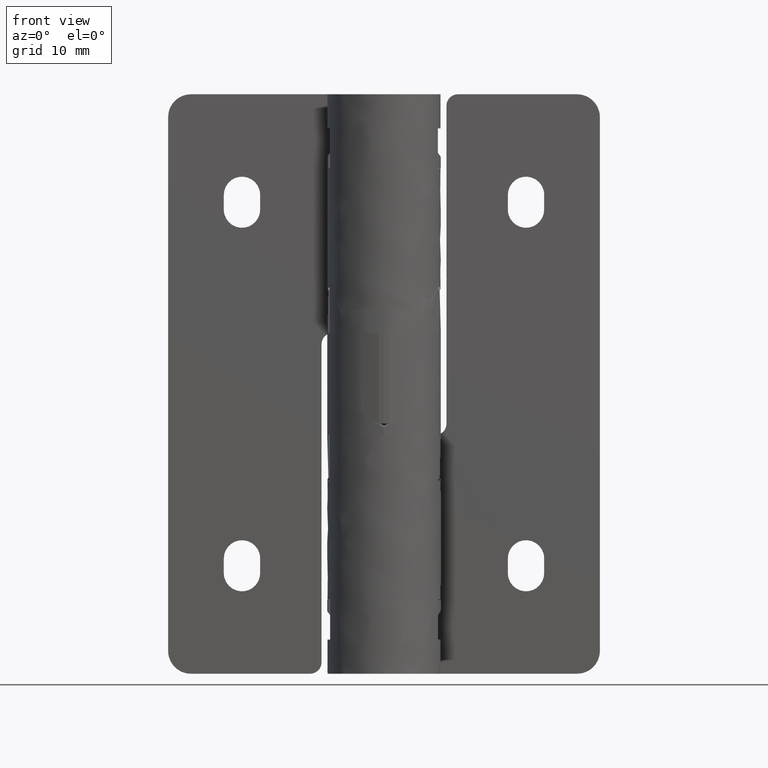
[diagram: clean part render]
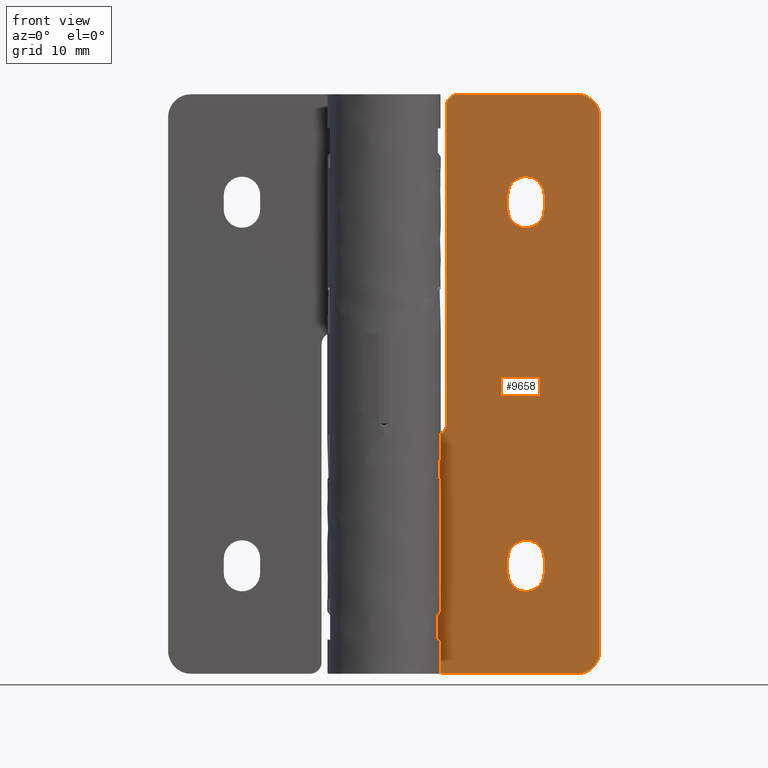
[diagram: same view with one face highlighted and labeled with its STEP entity id]
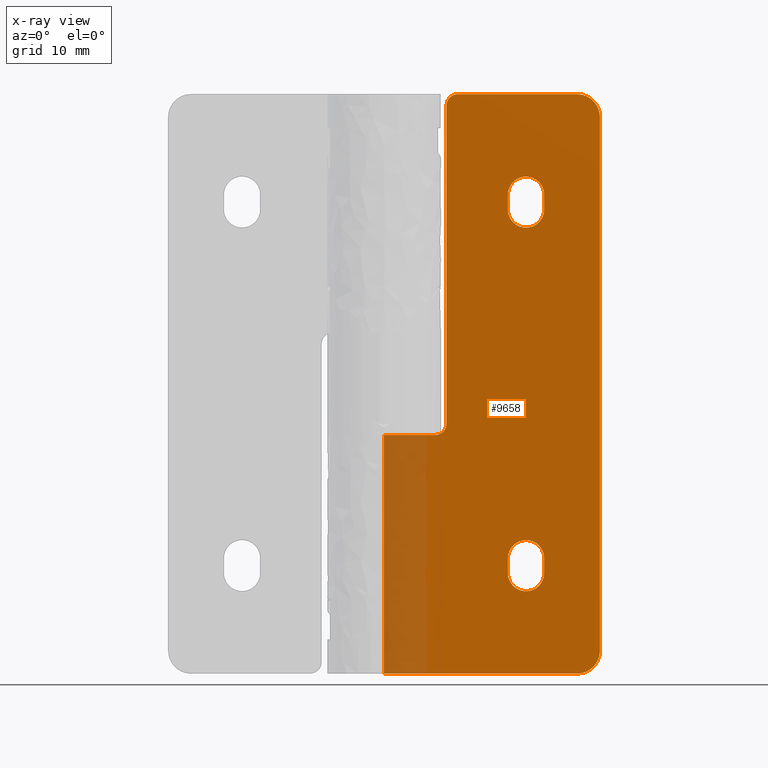
[diagram: x-ray of the same camera — body ghosted, the highlighted face saturated]
A machine part, front view. The second image highlights one B-rep face of the part: STEP entity #9658.
The next image is the same camera in x-ray: the body ghosted, the highlighted face saturated — about 10% of this face is hidden behind the body in this view.
In plain terms, the highlighted face is a freeform B-spline surface patch.
Its self-contained STEP definition (entity closure, byte-faithful):
#6243=CARTESIAN_POINT('',(0.000000013044994,3.500000000000000,0.500000000000056));
#6244=VERTEX_POINT('',#6243);
#6468=CARTESIAN_POINT('',(0.000000015343861,3.500000000000000,7.054697E-017));
#6469=VERTEX_POINT('',#6468);
#6506=CARTESIAN_POINT('',(0.000000013044994,3.500000000000000,0.500000000000056));
#6507=CARTESIAN_POINT('',(0.000000015343861,3.500000000000000,7.054697E-017));
#6508=QUASI_UNIFORM_CURVE('',1,(#6506,#6507),.UNSPECIFIED.,.F.,.U.);
#6509=EDGE_CURVE('',#6244,#6469,#6508,.T.);
#7769=CARTESIAN_POINT('',(3.570534124598411,3.500002604738415,21.000001016416348));
#7770=VERTEX_POINT('',#7769);
#7909=CARTESIAN_POINT('',(-0.000000081208532,3.499999992355165,21.000000999999951));
#7910=VERTEX_POINT('',#7909);
#7924=CARTESIAN_POINT('',(3.570534124598411,3.500002604738415,21.000001016416348));
#7925=CARTESIAN_POINT('',(-0.000000081208532,3.499999992355165,21.000000999999951));
#7926=QUASI_UNIFORM_CURVE('',1,(#7924,#7925),.UNSPECIFIED.,.F.,.U.);
#7927=EDGE_CURVE('',#7770,#7910,#7926,.T.);
#7952=CARTESIAN_POINT('',(5.499999785457250,3.500000000000000,50.000000025287598));
#7953=VERTEX_POINT('',#7952);
#7954=CARTESIAN_POINT('',(6.499999780859510,3.500000000000000,51.000000029885300));
#7955=VERTEX_POINT('',#7954);
#7956=CARTESIAN_POINT('',(5.499999785457250,3.500000000000000,50.000000025287576));
#7957=CARTESIAN_POINT('',(5.499999780859517,3.499999999999999,51.000000025287591));
#7958=CARTESIAN_POINT('',(6.499999780859517,3.500000000000000,51.000000029885307));
#7966=(BOUNDED_CURVE()B_SPLINE_CURVE(2,(#7956,#7957,#7958),.UNSPECIFIED.,.F.,.U.)CURVE()GEOMETRIC_REPRESENTATION_ITEM()QUASI_UNIFORM_CURVE()RATIONAL_B_SPLINE_CURVE((1.0,0.707106781186548,1.0))REPRESENTATION_ITEM(''));
#7967=EDGE_CURVE('',#7953,#7955,#7966,.T.);
#8012=CARTESIAN_POINT('',(4.499999918791495,3.500000000000000,21.000001020689801));
#8013=VERTEX_POINT('',#8012);
#8014=CARTESIAN_POINT('',(5.499999914193760,3.500000000000000,22.000001025287499));
#8015=VERTEX_POINT('',#8014);
#8016=CARTESIAN_POINT('',(4.499999918791495,3.500000000000000,21.000001020689801));
#8017=CARTESIAN_POINT('',(5.499999918791492,3.500000000002499,21.000001025287538));
#8018=CARTESIAN_POINT('',(5.499999914193760,3.500000000002500,22.000001025287538));
#8026=(BOUNDED_CURVE()B_SPLINE_CURVE(2,(#8016,#8017,#8018),.UNSPECIFIED.,.F.,.U.)CURVE()GEOMETRIC_REPRESENTATION_ITEM()QUASI_UNIFORM_CURVE()RATIONAL_B_SPLINE_CURVE((1.0,0.707106781186548,1.0))REPRESENTATION_ITEM(''));
#8027=EDGE_CURVE('',#8013,#8015,#8026,.T.);
#8088=CARTESIAN_POINT('',(17.000000780859502,3.500000000000000,51.000000078161492));
#8089=VERTEX_POINT('',#8088);
#8095=CARTESIAN_POINT('',(19.000000790054951,3.500000000000000,49.000000087357002));
#8096=VERTEX_POINT('',#8095);
#8097=CARTESIAN_POINT('',(17.000000780859480,3.500000000000000,51.000000078161499));
#8098=CARTESIAN_POINT('',(19.000000780859484,3.499999999999999,51.000000087356966));
#8099=CARTESIAN_POINT('',(19.000000790054951,3.500000000000000,49.000000087356973));
#8107=(BOUNDED_CURVE()B_SPLINE_CURVE(2,(#8097,#8098,#8099),.UNSPECIFIED.,.F.,.U.)CURVE()GEOMETRIC_REPRESENTATION_ITEM()QUASI_UNIFORM_CURVE()RATIONAL_B_SPLINE_CURVE((1.0,0.707106781186548,1.0))REPRESENTATION_ITEM(''));
#8108=EDGE_CURVE('',#8089,#8096,#8107,.T.);
#8149=CARTESIAN_POINT('',(19.000001006148398,3.500000000000000,2.000000087356930));
#8150=VERTEX_POINT('',#8149);
#8156=CARTESIAN_POINT('',(17.000001015343852,3.500000000000000,0.000000078161463));
#8157=VERTEX_POINT('',#8156);
#8158=CARTESIAN_POINT('',(19.000001006148398,3.500000000000000,2.000000087356930));
#8159=CARTESIAN_POINT('',(19.000094979292541,3.500000000000000,1.795458794788906));
#8160=CARTESIAN_POINT('',(18.949355884602941,3.500000000000004,1.468271937461394));
#8161=CARTESIAN_POINT('',(18.783394435218071,3.499999999999998,1.074584710632708));
#8162=CARTESIAN_POINT('',(18.594687293641339,3.499999999999992,0.776561701776721));
#8163=CARTESIAN_POINT('',(18.362824094339778,3.500000000000015,0.520735022080333));
#8164=CARTESIAN_POINT('',(18.068749375671050,3.500000000000016,0.296986420686896));
#8165=CARTESIAN_POINT('',(17.761472016652618,3.499999999999955,0.139951189149376));
#8166=CARTESIAN_POINT('',(17.400867981556150,3.500000000000068,0.028143525776525));
#8167=CARTESIAN_POINT('',(17.147262059748400,3.499999999999968,-0.000027864308940));
#8168=CARTESIAN_POINT('',(17.000001015343852,3.500000000000000,0.000000078161463));
#8169=B_SPLINE_CURVE_WITH_KNOTS('',3,(#8158,#8159,#8160,#8161,#8162,#8163,#8164,#8165,#8166,#8167,#8168),.UNSPECIFIED.,.F.,.U.,(4,1,1,1,1,1,1,1,4),(0.000000065927399,0.613591639472642,0.981754291637013,1.276283243474417,1.668964156680014,2.012585512335151,2.380753428149126,2.699833068296342,3.141612365755641),.UNSPECIFIED.);
#8170=EDGE_CURVE('',#8150,#8157,#8169,.T.);
#8607=CARTESIAN_POINT('',(-0.000000081208532,3.499999992355165,21.000000999999951));
#8608=CARTESIAN_POINT('',(0.000000013044994,3.500000000000000,0.500000000000056));
#8609=QUASI_UNIFORM_CURVE('',1,(#8607,#8608),.UNSPECIFIED.,.F.,.U.);
#8610=EDGE_CURVE('',#7910,#6244,#8609,.T.);
#9105=CARTESIAN_POINT('',(5.499999785457250,3.500000000000000,50.000000025287598));
#9106=CARTESIAN_POINT('',(5.499999914193760,3.500000000000000,22.000001025287499));
#9107=QUASI_UNIFORM_CURVE('',1,(#9105,#9106),.UNSPECIFIED.,.F.,.U.);
#9108=EDGE_CURVE('',#7953,#8015,#9107,.T.);
#9162=CARTESIAN_POINT('',(10.900000827526441,3.499999999999950,40.850002050115307));
#9163=VERTEX_POINT('',#9162);
#9169=CARTESIAN_POINT('',(14.100000827526481,3.499999999999950,40.850002064828047));
#9170=VERTEX_POINT('',#9169);
#9171=CARTESIAN_POINT('',(14.100000827526481,3.499999999999950,40.850002064828047));
#9172=CARTESIAN_POINT('',(14.100053251197551,3.499999999999943,40.699463688606741));
#9173=CARTESIAN_POINT('',(14.061848603070811,3.499999999999969,40.431152384465413));
#9174=CARTESIAN_POINT('',(13.920710381066939,3.499999999999937,40.090475181423237));
#9175=CARTESIAN_POINT('',(13.707015659184499,3.499999999999956,39.774748583505797));
#9176=CARTESIAN_POINT('',(13.455398175146090,3.499999999999940,39.549483300761928));
#9177=CARTESIAN_POINT('',(13.163243804795149,3.499999999999954,39.386423118011507));
#9178=CARTESIAN_POINT('',(12.928600319995191,3.499999999999952,39.300829887527669));
#9179=CARTESIAN_POINT('',(12.638276244199950,3.499999999999931,39.246774461331782));
#9180=CARTESIAN_POINT('',(12.322204483216220,3.499999999999993,39.246760556923590));
#9181=CARTESIAN_POINT('',(11.943123371473821,3.499999999999957,39.331862338132488));
#9182=CARTESIAN_POINT('',(11.619379172036840,3.499999999999810,39.497300427965833));
#9183=CARTESIAN_POINT('',(11.347967859816590,3.500000000000043,39.725743367366420));
#9184=CARTESIAN_POINT('',(11.165649511250420,3.499999999999880,39.950685247497503));
#9185=CARTESIAN_POINT('',(11.021643865584840,3.500000000000077,40.216187031641681));
#9186=CARTESIAN_POINT('',(10.924686524782031,3.499999999999701,40.509683933321831));
#9187=CARTESIAN_POINT('',(10.899979639381220,3.500000000000105,40.732200008323673));
#9188=CARTESIAN_POINT('',(10.900000827526441,3.499999999999950,40.850002050115307));
#9189=B_SPLINE_CURVE_WITH_KNOTS('',3,(#9171,#9172,#9173,#9174,#9175,#9176,#9177,#9178,#9179,#9180,#9181,#9182,#9183,#9184,#9185,#9186,#9187,#9188),.UNSPECIFIED.,.F.,.U.,(4,1,1,1,1,1,1,1,1,1,1,1,1,1,1,4),(0.000000211093638,0.451604613035167,0.805025872492401,1.099564617320032,1.590447560862146,1.806444734356179,2.100968640533328,2.336603771514909,2.689985130740817,3.043433374605037,3.495041642298955,3.769936008371592,4.103735039182984,4.359000986496893,4.673177240923587,5.026579785263318),.UNSPECIFIED.);
#9190=EDGE_CURVE('',#9170,#9163,#9189,.T.);
#9212=CARTESIAN_POINT('',(10.900000821549421,3.499999999999950,42.150002050115297));
#9213=VERTEX_POINT('',#9212);
#9219=CARTESIAN_POINT('',(10.900000821549421,3.499999999999950,42.150002050115297));
#9220=CARTESIAN_POINT('',(10.900000827526441,3.499999999999950,40.850002050115307));
#9221=QUASI_UNIFORM_CURVE('',1,(#9219,#9220),.UNSPECIFIED.,.F.,.U.);
#9222=EDGE_CURVE('',#9213,#9163,#9221,.T.);
#9268=CARTESIAN_POINT('',(14.100000821549420,3.499999999999950,42.150002064828051));
#9269=VERTEX_POINT('',#9268);
#9275=CARTESIAN_POINT('',(10.900000821549421,3.499999999999950,42.150002050115297));
#9276=CARTESIAN_POINT('',(10.899978945431601,3.499999999999954,42.267803197833622));
#9277=CARTESIAN_POINT('',(10.923966730264739,3.499999999999947,42.483771708558848));
#9278=CARTESIAN_POINT('',(11.029163836232620,3.499999999999957,42.808965985491433));
#9279=CARTESIAN_POINT('',(11.216278855829399,3.499999999999945,43.134664595135128));
#9280=CARTESIAN_POINT('',(11.508937637986261,3.499999999999941,43.430974180727681));
#9281=CARTESIAN_POINT('',(11.840855313393810,3.499999999999973,43.621639563686877));
#9282=CARTESIAN_POINT('',(12.166522619631660,3.499999999999942,43.724785214722637));
#9283=CARTESIAN_POINT('',(12.493312097765591,3.499999999999953,43.763073012399637));
#9284=CARTESIAN_POINT('',(12.801320608939280,3.499999999999951,43.730815913039450));
#9285=CARTESIAN_POINT('',(13.090596147136351,3.499999999999954,43.644980605009103));
#9286=CARTESIAN_POINT('',(13.386157391568030,3.499999999999933,43.500807473573850));
#9287=CARTESIAN_POINT('',(13.660677598694051,3.499999999999999,43.272654312628383));
#9288=CARTESIAN_POINT('',(13.869873772186260,3.499999999999911,42.994091523268402));
#9289=CARTESIAN_POINT('',(14.045092650906239,3.499999999999944,42.640771373503362));
#9290=CARTESIAN_POINT('',(14.100163069857301,3.500000000000042,42.346377898760231));
#9291=CARTESIAN_POINT('',(14.100000821549420,3.499999999999950,42.150002064828051));
#9292=B_SPLINE_CURVE_WITH_KNOTS('',3,(#9275,#9276,#9277,#9278,#9279,#9280,#9281,#9282,#9283,#9284,#9285,#9286,#9287,#9288,#9289,#9290,#9291),.UNSPECIFIED.,.F.,.U.,(4,1,1,1,1,1,1,1,1,1,1,1,1,1,4),(0.000000211129493,0.353399654043991,0.647944843939968,1.021022703186263,1.472638143085112,1.884980470515870,2.159888306130032,2.493688093738869,2.866702947782527,3.082699014519806,3.396855983655159,3.848478188345035,4.143003381897012,4.437533010904484,5.026579785263346),.UNSPECIFIED.);
#9293=EDGE_CURVE('',#9213,#9269,#9292,.T.);
#9310=CARTESIAN_POINT('',(14.100000827526481,3.499999999999950,40.850002064828047));
#9311=CARTESIAN_POINT('',(14.100000821549420,3.499999999999950,42.150002064828051));
#9312=QUASI_UNIFORM_CURVE('',1,(#9310,#9311),.UNSPECIFIED.,.F.,.U.);
#9313=EDGE_CURVE('',#9170,#9269,#9312,.T.);
#9361=CARTESIAN_POINT('',(10.900000974653899,3.499999999999950,8.850001050115312));
#9362=VERTEX_POINT('',#9361);
#9368=CARTESIAN_POINT('',(14.100000974653920,3.499999999999950,8.850001064828060));
#9369=VERTEX_POINT('',#9368);
#9370=CARTESIAN_POINT('',(14.100000974653920,3.499999999999950,8.850001064828060));
#9371=CARTESIAN_POINT('',(14.100019211823570,3.499999999999941,8.732201238931500));
#9372=CARTESIAN_POINT('',(14.073147939572220,3.499999999999959,8.490044784223345));
#9373=CARTESIAN_POINT('',(13.959701230955741,3.499999999999949,8.166716063143634));
#9374=CARTESIAN_POINT('',(13.785591468221080,3.499999999999945,7.880247514460281));
#9375=CARTESIAN_POINT('',(13.580926771048629,3.499999999999953,7.657203272239146));
#9376=CARTESIAN_POINT('',(13.348751380334109,3.499999999999950,7.485033020018297));
#9377=CARTESIAN_POINT('',(13.056431129322130,3.499999999999933,7.335570711498113));
#9378=CARTESIAN_POINT('',(12.723525009024369,3.499999999999959,7.250029574333757));
#9379=CARTESIAN_POINT('',(12.335526975942919,3.499999999999949,7.245293928043634));
#9380=CARTESIAN_POINT('',(11.954890815525211,3.499999999999954,7.325830996985051));
#9381=CARTESIAN_POINT('',(11.607604907896061,3.499999999999949,7.503321632565668));
#9382=CARTESIAN_POINT('',(11.338717224858669,3.499999999999954,7.735334838864086));
#9383=CARTESIAN_POINT('',(11.159396457963620,3.499999999999946,7.962233289794486));
#9384=CARTESIAN_POINT('',(11.015373399393750,3.499999999999953,8.227724580018990));
#9385=CARTESIAN_POINT('',(10.921910206552059,3.499999999999952,8.522765227539543));
#9386=CARTESIAN_POINT('',(10.899992184689770,3.499999999999949,8.745290292186272));
#9387=CARTESIAN_POINT('',(10.900000974653899,3.499999999999950,8.850001050115312));
#9388=B_SPLINE_CURVE_WITH_KNOTS('',3,(#9370,#9371,#9372,#9373,#9374,#9375,#9376,#9377,#9378,#9379,#9380,#9381,#9382,#9383,#9384,#9385,#9386,#9387),.UNSPECIFIED.,.F.,.U.,(4,1,1,1,1,1,1,1,1,1,1,1,1,1,1,4),(0.000000211126778,0.353399654043209,0.726485548720548,1.021022703187734,1.354825402756863,1.629716173362232,1.884980470515512,2.336603771534737,2.650728218654344,3.043433374620626,3.495041642311258,3.809206983909943,4.103735039190174,4.359000986501938,4.712445117536906,5.026579785263275),.UNSPECIFIED.);
#9389=EDGE_CURVE('',#9369,#9362,#9388,.T.);
#9411=CARTESIAN_POINT('',(10.900000968676880,3.499999999999950,10.150001050115300));
#9412=VERTEX_POINT('',#9411);
#9418=CARTESIAN_POINT('',(10.900000968676880,3.499999999999950,10.150001050115300));
#9419=CARTESIAN_POINT('',(10.900000974653899,3.499999999999950,8.850001050115312));
#9420=QUASI_UNIFORM_CURVE('',1,(#9418,#9419),.UNSPECIFIED.,.F.,.U.);
#9421=EDGE_CURVE('',#9412,#9362,#9420,.T.);
#9466=CARTESIAN_POINT('',(14.100000968676881,3.499999999999950,10.150001064828039));
#9467=VERTEX_POINT('',#9466);
#9473=CARTESIAN_POINT('',(10.900000968676880,3.499999999999950,10.150001050115300));
#9474=CARTESIAN_POINT('',(10.899859536374560,3.499999999999961,10.339814710194210));
#9475=CARTESIAN_POINT('',(10.961281222374140,3.499999999999943,10.680070326029000));
#9476=CARTESIAN_POINT('',(11.169331711904089,3.499999999999960,11.063546634112249));
#9477=CARTESIAN_POINT('',(11.404352836560189,3.499999999999926,11.329276809349620));
#9478=CARTESIAN_POINT('',(11.670181684125399,3.499999999999956,11.534162342093760));
#9479=CARTESIAN_POINT('',(11.987953055671980,3.499999999999950,11.679698960780430));
#9480=CARTESIAN_POINT('',(12.348252956551651,3.499999999999936,11.755958121107300));
#9481=CARTESIAN_POINT('',(12.717502222352850,3.499999999999997,11.751461187918769));
#9482=CARTESIAN_POINT('',(13.074578162670250,3.499999999999861,11.657326443333620));
#9483=CARTESIAN_POINT('',(13.360620084778841,3.500000000000084,11.508887993208999));
#9484=CARTESIAN_POINT('',(13.620689834618110,3.499999999999917,11.308525832608829));
#9485=CARTESIAN_POINT('',(13.851817918030321,3.499999999999960,11.037251337105859));
#9486=CARTESIAN_POINT('',(14.048501396587000,3.499999999999949,10.634258447616480));
#9487=CARTESIAN_POINT('',(14.100107618569311,3.499999999999952,10.326720714417130));
#9488=CARTESIAN_POINT('',(14.100000968676881,3.499999999999950,10.150001064828039));
#9489=B_SPLINE_CURVE_WITH_KNOTS('',3,(#9473,#9474,#9475,#9476,#9477,#9478,#9479,#9480,#9481,#9482,#9483,#9484,#9485,#9486,#9487,#9488),.UNSPECIFIED.,.F.,.U.,(4,1,1,1,1,1,1,1,1,1,1,1,1,4),(0.000000211115994,0.569406674758143,1.021022703180810,1.295917826274495,1.629716173357565,2.022437574524755,2.336603771532246,2.729247815692168,3.121966066297088,3.436127304837082,3.691394890430130,4.103735039190315,4.496457073184497,5.026579785263262),.UNSPECIFIED.);
#9490=EDGE_CURVE('',#9412,#9467,#9489,.T.);
#9507=CARTESIAN_POINT('',(14.100000974653920,3.499999999999950,8.850001064828060));
#9508=CARTESIAN_POINT('',(14.100000968676881,3.499999999999950,10.150001064828039));
#9509=QUASI_UNIFORM_CURVE('',1,(#9507,#9508),.UNSPECIFIED.,.F.,.U.);
#9510=EDGE_CURVE('',#9369,#9467,#9509,.T.);
#9521=CARTESIAN_POINT('',(17.000001015343852,3.500000000000000,0.000000078161463));
#9522=CARTESIAN_POINT('',(0.000000015343861,3.500000000000000,7.054697E-017));
#9523=QUASI_UNIFORM_CURVE('',1,(#9521,#9522),.UNSPECIFIED.,.F.,.U.);
#9524=EDGE_CURVE('',#8157,#6469,#9523,.T.);
#9594=CARTESIAN_POINT('',(19.000000790054951,3.500000000000000,49.000000087357002));
#9595=CARTESIAN_POINT('',(19.000001006148398,3.500000000000000,2.000000087356930));
#9596=QUASI_UNIFORM_CURVE('',1,(#9594,#9595),.UNSPECIFIED.,.F.,.U.);
#9597=EDGE_CURVE('',#8096,#8150,#9596,.T.);
#9608=CARTESIAN_POINT('',(17.000000780859502,3.500000000000000,51.000000078161492));
#9609=CARTESIAN_POINT('',(6.499999780859510,3.500000000000000,51.000000029885300));
#9610=QUASI_UNIFORM_CURVE('',1,(#9608,#9609),.UNSPECIFIED.,.F.,.U.);
#9611=EDGE_CURVE('',#8089,#7955,#9610,.T.);
#9623=CARTESIAN_POINT('',(-0.949049986067959,3.500000000000000,-2.547449905515590));
#9624=CARTESIAN_POINT('',(-0.949050243977329,3.500000000000000,53.547451264715249));
#9625=CARTESIAN_POINT('',(19.949051549800419,3.500000000000000,-2.547449809431702));
#9626=CARTESIAN_POINT('',(19.949051291891049,3.500000000000000,53.547451360799137));
#9627=B_SPLINE_SURFACE_WITH_KNOTS('',1,1,((#9623,#9625),(#9624,#9626)),.UNSPECIFIED.,.F.,.F.,.U.,(2,2),(2,2),(0.0,56.094901170230841),(0.0,20.898101535868371),.UNSPECIFIED.);
#9628=ORIENTED_EDGE('',*,*,#9108,.T.);
#9629=ORIENTED_EDGE('',*,*,#8027,.F.);
#9630=CARTESIAN_POINT('',(4.499999918791495,3.500000000000000,21.000001020689801));
#9631=CARTESIAN_POINT('',(3.570534124598411,3.500002604738415,21.000001016416348));
#9632=QUASI_UNIFORM_CURVE('',1,(#9630,#9631),.UNSPECIFIED.,.F.,.U.);
#9633=EDGE_CURVE('',#8013,#7770,#9632,.T.);
#9634=ORIENTED_EDGE('',*,*,#9633,.T.);
#9635=ORIENTED_EDGE('',*,*,#7927,.T.);
#9636=ORIENTED_EDGE('',*,*,#8610,.T.);
#9637=ORIENTED_EDGE('',*,*,#6509,.T.);
#9638=ORIENTED_EDGE('',*,*,#9524,.F.);
#9639=ORIENTED_EDGE('',*,*,#8170,.F.);
#9640=ORIENTED_EDGE('',*,*,#9597,.F.);
#9641=ORIENTED_EDGE('',*,*,#8108,.F.);
#9642=ORIENTED_EDGE('',*,*,#9611,.T.);
#9643=ORIENTED_EDGE('',*,*,#7967,.F.);
#9644=EDGE_LOOP('',(#9628,#9629,#9634,#9635,#9636,#9637,#9638,#9639,#9640,#9641,#9642,#9643));
#9645=FACE_OUTER_BOUND('',#9644,.T.);
#9646=ORIENTED_EDGE('',*,*,#9190,.T.);
#9647=ORIENTED_EDGE('',*,*,#9222,.F.);
#9648=ORIENTED_EDGE('',*,*,#9293,.T.);
#9649=ORIENTED_EDGE('',*,*,#9313,.F.);
#9650=EDGE_LOOP('',(#9646,#9647,#9648,#9649));
#9651=FACE_BOUND('',#9650,.T.);
#9652=ORIENTED_EDGE('',*,*,#9389,.T.);
#9653=ORIENTED_EDGE('',*,*,#9421,.F.);
#9654=ORIENTED_EDGE('',*,*,#9490,.T.);
#9655=ORIENTED_EDGE('',*,*,#9510,.F.);
#9656=EDGE_LOOP('',(#9652,#9653,#9654,#9655));
#9657=FACE_BOUND('',#9656,.T.);
#9658=ADVANCED_FACE('',(#9645,#9651,#9657),#9627,.F.);